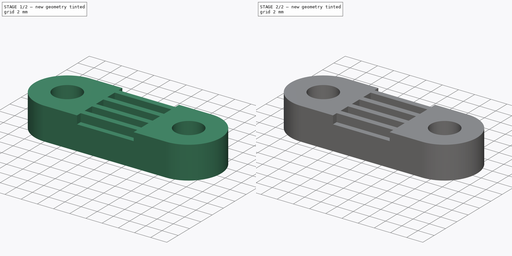
[diagram: build sequence overview — one tinted view per stage of 2, left to right]
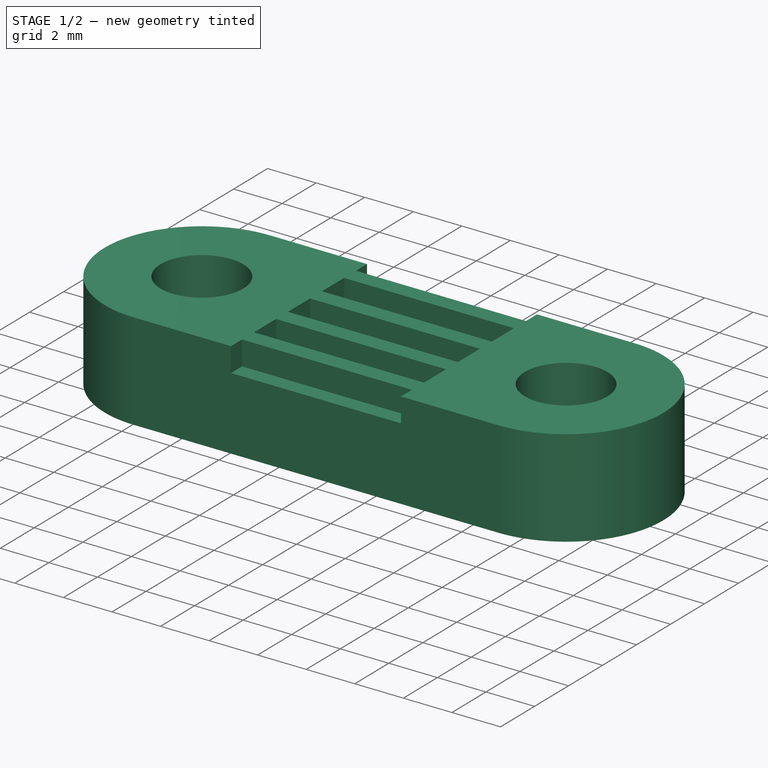
[diagram: stage 1 of 2 — iso view after this stage's code; geometry added in this stage tinted green]
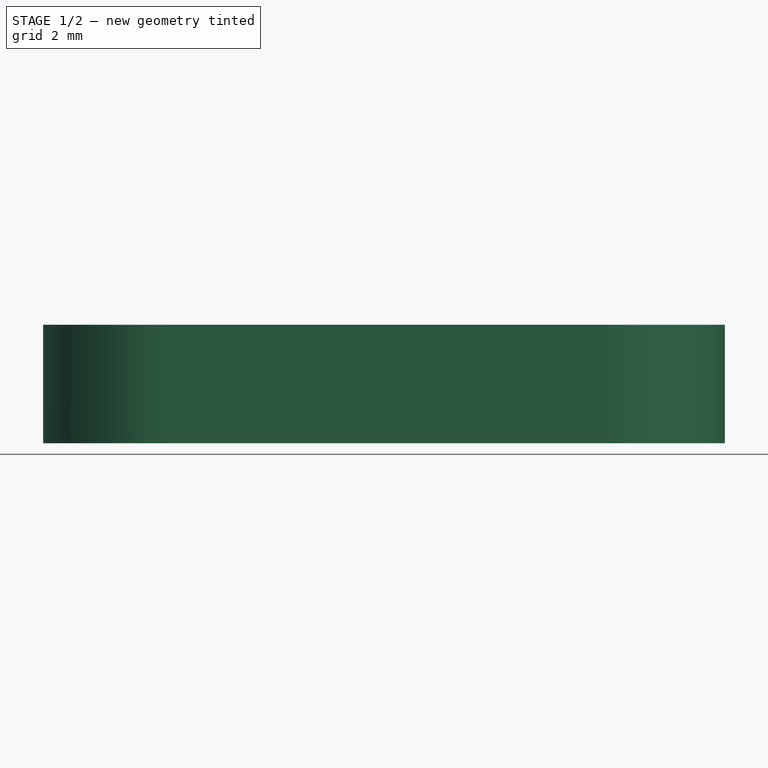
[diagram: stage 1 of 2 — front view after this stage's code; geometry added in this stage tinted green]
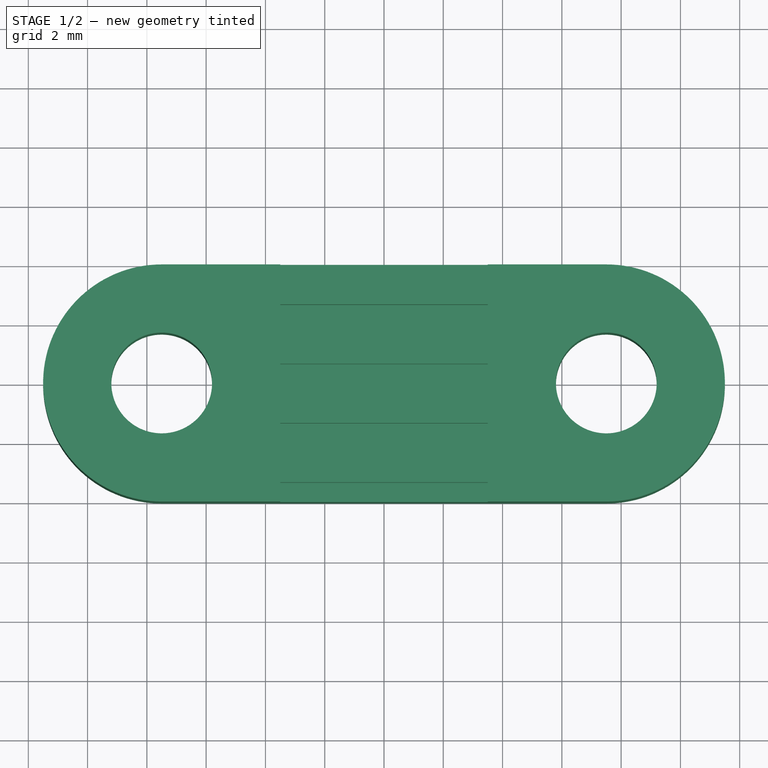
[diagram: stage 1 of 2 — top view after this stage's code; geometry added in this stage tinted green]
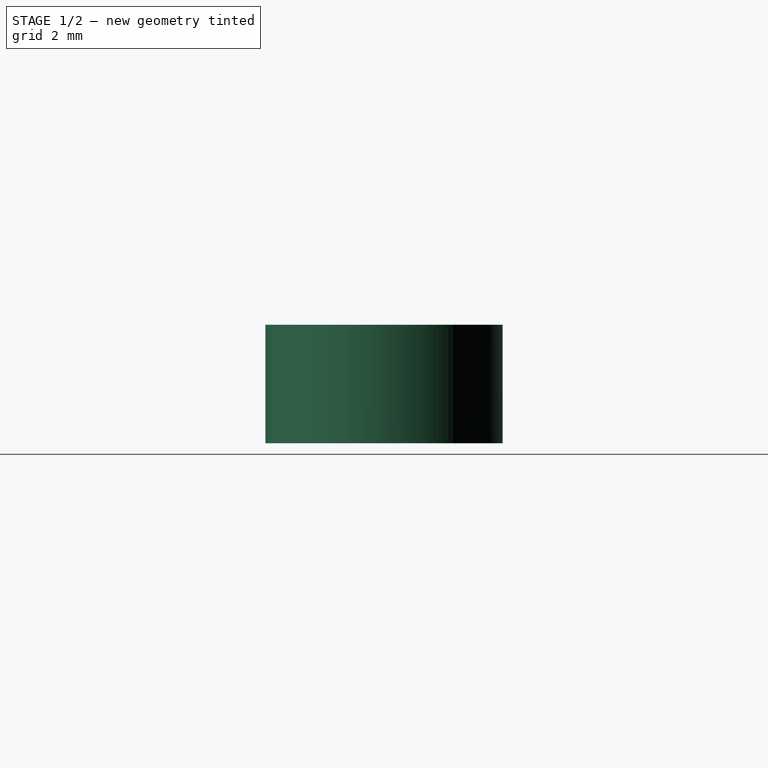
[diagram: stage 1 of 2 — right view after this stage's code; geometry added in this stage tinted green]
FCSTD DOCUMENT  (FreeCAD 0.15R4671 (Git))
Label: Belt Fixture - Top
License: All rights reserved
LicenseURL: http://de.wikipedia.org/wiki/Alle_Rechte_vorbehalten
objects: Sketcher::SketchObject×2, PartDesign::Pad×1, PartDesign::Pocket×1, PartDesign::Chamfer×1
note: 7 computed .brp shape members not serialized (recipe doc carries the construction recipe); baked Part::Feature solids carry a one-line shape summary decoded from their .brp

FEATURE [Sketcher::SketchObject] Sketch
  sketch-geometry (6):
    g0: ArcOfCircle CenterX=-7.5 CenterY=0 CenterZ=0 NormalX=0 NormalY=0 NormalZ=1 Radius=4 StartAngle=1.5708 EndAngle=4.71239
    g1: ArcOfCircle CenterX=7.5 CenterY=0 CenterZ=0 NormalX=0 NormalY=0 NormalZ=1 Radius=4 StartAngle=4.71239 EndAngle=7.85398
    g2: LineSegment StartX=-7.5 StartY=-4 StartZ=0 EndX=7.5 EndY=-4 EndZ=0
    g3: LineSegment StartX=-7.5 StartY=4 StartZ=0 EndX=7.5 EndY=4 EndZ=0
    g4: Circle CenterX=-7.5 CenterY=0 CenterZ=0 NormalX=0 NormalY=0 NormalZ=1 Radius=1.7
    g5: Circle CenterX=7.5 CenterY=0 CenterZ=0 NormalX=0 NormalY=0 NormalZ=1 Radius=1.7
  constraints (14):
    c: Tangent(g0,g3) = 1.5708
    c: Tangent(g0,g2) = -1.5708
    c: Tangent(g2,g1) = -1.5708
    c: Tangent(g3,g1) = 1.5708
    c: Horizontal(g2)
    c: Equal(g0,g1)
    c: Symmetric(g0,g1,g-2)
    c: PointOnObject(g1,g-1)
    c: Coincident(g4,g0)
    c: Coincident(g5,g1)
    c: Radius(g4) = 1.7
    c: Equal(g4,g5)
    c: DistanceY(g0,g0) = 8
    c: DistanceX(g3) = 15
FEATURE [PartDesign::Pad] Pad
  Length = 4
  Length2 = 100
  Sketch = -> Sketch
  Type = 0
FEATURE [Sketcher::SketchObject] Sketch001
  Placement = pos=(0,0,4) rot=(0,0,1;0rad)
  Support = -> Pad [Face8]
  sketch-geometry (20):
    g0: LineSegment StartX=-3.5 StartY=2.65 StartZ=0 EndX=3.5 EndY=2.65 EndZ=0
    g1: LineSegment StartX=3.5 StartY=2.65 StartZ=0 EndX=3.5 EndY=1.35 EndZ=0
    g2: LineSegment StartX=3.5 StartY=1.35 StartZ=0 EndX=-3.5 EndY=1.35 EndZ=0
    g3: LineSegment StartX=-3.5 StartY=1.35 StartZ=0 EndX=-3.5 EndY=2.65 EndZ=0
    g4: LineSegment StartX=-3.5 StartY=0.65 StartZ=0 EndX=3.5 EndY=0.65 EndZ=0
    g5: LineSegment StartX=3.5 StartY=0.65 StartZ=0 EndX=3.5 EndY=-0.65 EndZ=0
    g6: LineSegment StartX=3.5 StartY=-0.65 StartZ=0 EndX=-3.5 EndY=-0.65 EndZ=0
    g7: LineSegment StartX=-3.5 StartY=-0.65 StartZ=0 EndX=-3.5 EndY=0.65 EndZ=0
    g8: LineSegment StartX=-3.5 StartY=-1.35 StartZ=0 EndX=3.5 EndY=-1.35 EndZ=0
    g9: LineSegment StartX=3.5 StartY=-1.35 StartZ=0 EndX=3.5 EndY=-2.65 EndZ=0
    g10: LineSegment StartX=3.5 StartY=-2.65 StartZ=0 EndX=-3.5 EndY=-2.65 EndZ=0
    g11: LineSegment StartX=-3.5 StartY=-2.65 StartZ=0 EndX=-3.5 EndY=-1.35 EndZ=0
    g12: LineSegment StartX=-3.5 StartY=4.65 StartZ=0 EndX=3.5 EndY=4.65 EndZ=0
    g13: LineSegment StartX=3.5 StartY=4.65 StartZ=0 EndX=3.5 EndY=3.35 EndZ=0
    g14: LineSegment StartX=3.5 StartY=3.35 StartZ=0 EndX=-3.5 EndY=3.35 EndZ=0
    g15: LineSegment StartX=-3.5 StartY=3.35 StartZ=0 EndX=-3.5 EndY=4.65 EndZ=0
    g16: LineSegment StartX=-3.5 StartY=-4.65 StartZ=0 EndX=3.5 EndY=-4.65 EndZ=0
    g17: LineSegment StartX=3.5 StartY=-4.65 StartZ=0 EndX=3.5 EndY=-3.35 EndZ=0
    g18: LineSegment StartX=3.5 StartY=-3.35 StartZ=0 EndX=-3.5 EndY=-3.35 EndZ=0
    g19: LineSegment StartX=-3.5 StartY=-3.35 StartZ=0 EndX=-3.5 EndY=-4.65 EndZ=0
  constraints (60):
    c: Coincident(g0,g1)
    c: Coincident(g1,g2)
    c: Coincident(g2,g3)
    c: Coincident(g3,g0)
    c: Horizontal(g0)
    c: Horizontal(g2)
    c: Vertical(g1)
    c: Vertical(g3)
    c: Symmetric(g2,g1,g-2)
    c: DistanceY(g1) = -1.3
    c: DistanceX(g2) = -7
    c: Coincident(g4,g5)
    c: Coincident(g5,g6)
    c: Coincident(g6,g7)
    c: Coincident(g7,g4)
    c: Horizontal(g4)
    c: Horizontal(g6)
    c: Vertical(g5)
    c: Vertical(g7)
    c: Symmetric(g4,g4,g-2)
    c: Equal(g4,g2)
    c: Equal(g1,g5)
    c: DistanceY(g1,g4) = -0.7
    c: Coincident(g8,g9)
    c: Coincident(g9,g10)
    c: Coincident(g10,g11)
    c: Coincident(g11,g8)
    c: Horizontal(g8)
    c: Horizontal(g10)
    c: Vertical(g9)
    c: Vertical(g11)
    c: Symmetric(g5,g4,g-1)
    c: Equal(g5,g9)
    c: Symmetric(g8,g8,g-2)
    c: Equal(g6,g8)
    c: Coincident(g12,g13)
    c: Coincident(g13,g14)
    c: Coincident(g14,g15)
    c: Coincident(g15,g12)
    c: Horizontal(g12)
    c: Horizontal(g14)
    c: Vertical(g13)
    c: Vertical(g15)
    c: Coincident(g16,g17)
    c: Coincident(g17,g18)
    c: Coincident(g18,g19)
    c: Coincident(g19,g16)
    c: Horizontal(g16)
    c: Horizontal(g18)
    c: Vertical(g17)
    c: Vertical(g19)
    c: DistanceY(g8,g5) = 0.7
    c: DistanceY(g0,g13) = 0.7
    c: DistanceY(g9,g17) = -0.7
    c: Equal(g1,g13)
    c: Equal(g13,g17)
    c: Symmetric(g12,g12,g-2)
    c: Symmetric(g18,g17,g-2)
    c: Equal(g14,g0)
    c: Equal(g0,g18)
FEATURE [PartDesign::Pocket] Pocket
  Length = 1
  Sketch = -> Sketch001
  Type = 0
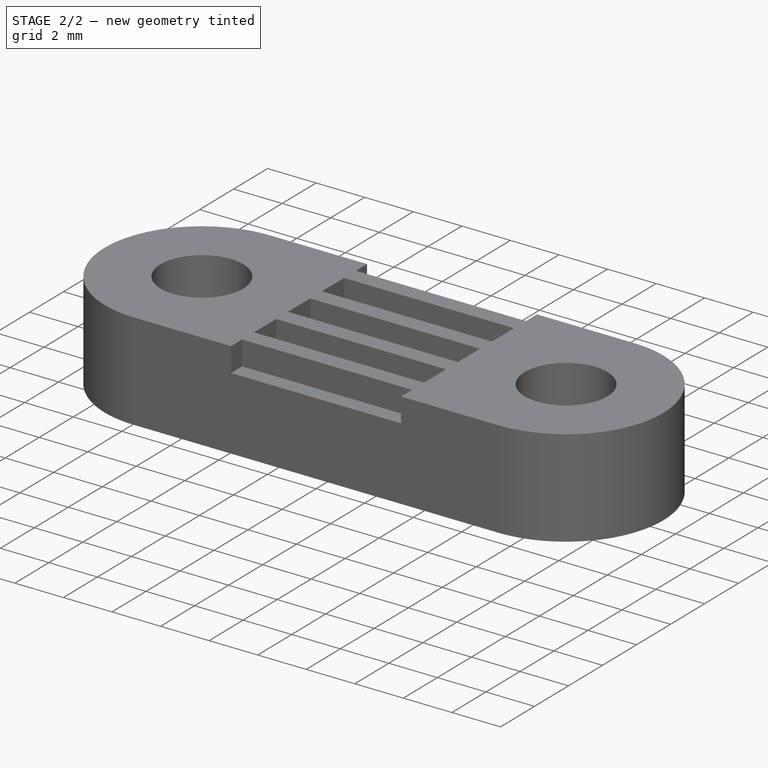
[diagram: stage 2 of 2 — iso view after this stage's code; geometry added in this stage tinted green]
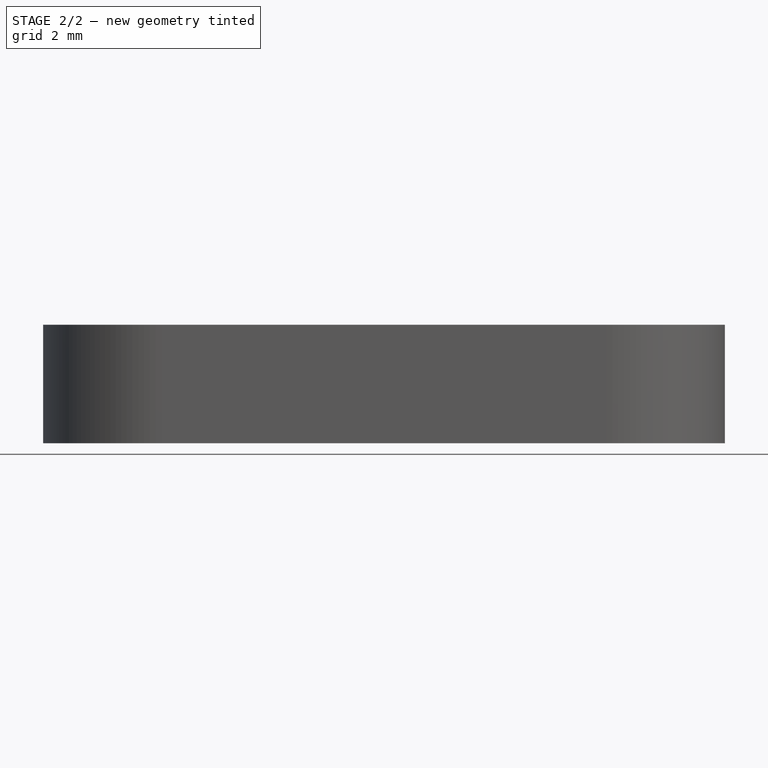
[diagram: stage 2 of 2 — front view after this stage's code; geometry added in this stage tinted green]
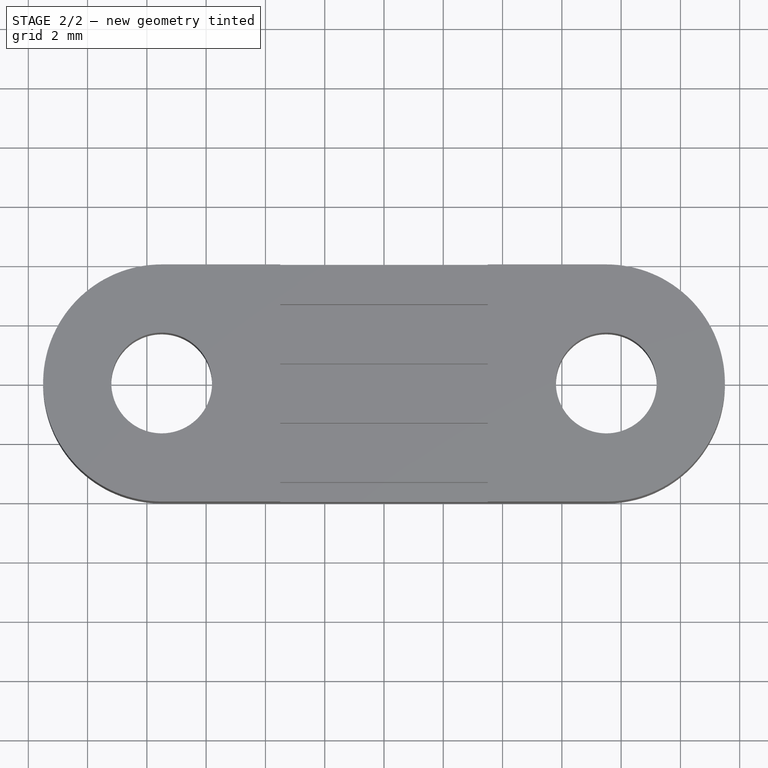
[diagram: stage 2 of 2 — top view after this stage's code; geometry added in this stage tinted green]
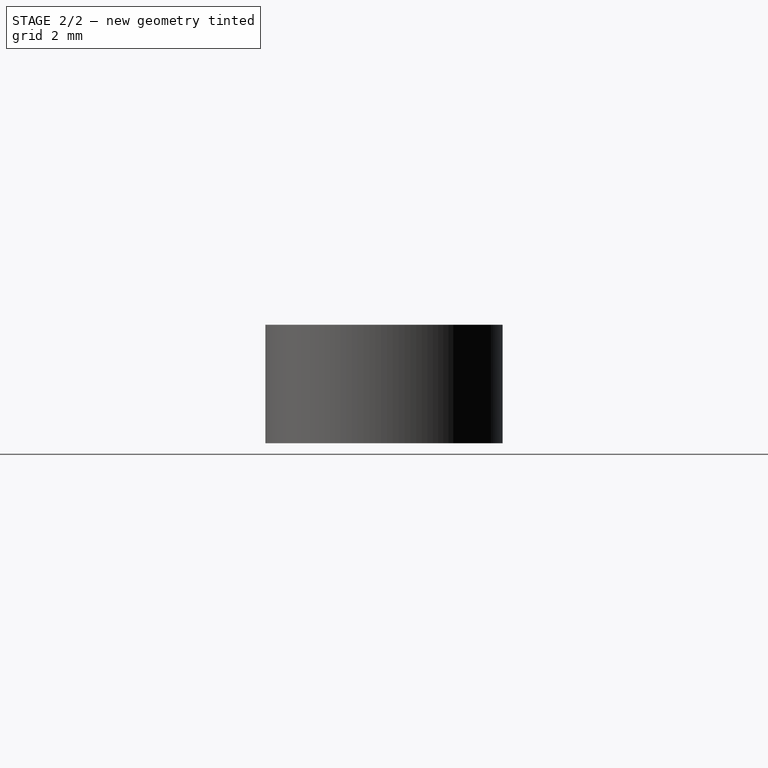
[diagram: stage 2 of 2 — right view after this stage's code; geometry added in this stage tinted green]
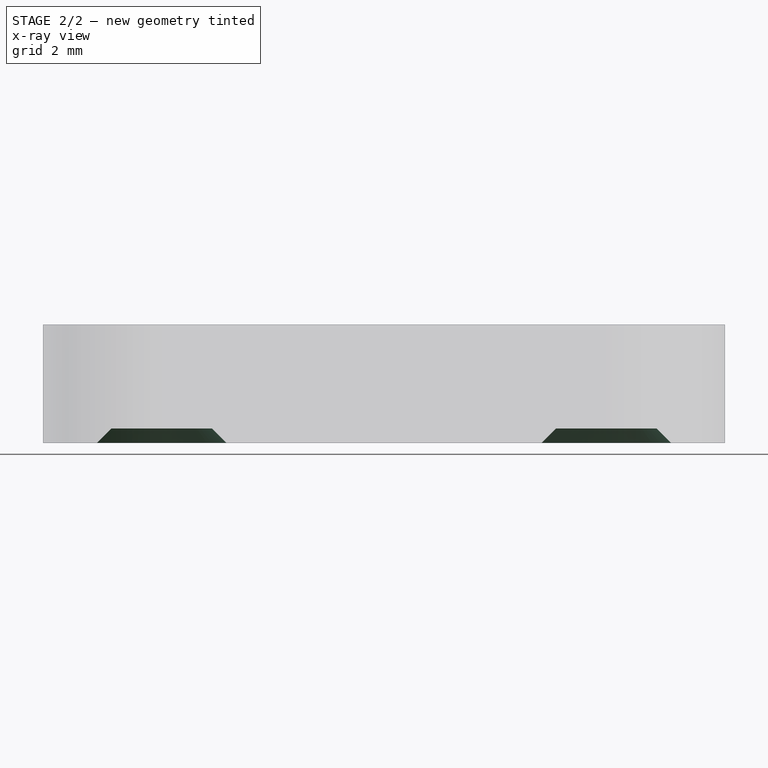
[diagram: stage 2 of 2 — x-ray composite at the front view; earlier geometry ghosted, this stage's added geometry solid]
FEATURE [PartDesign::Chamfer] Chamfer
  Base = -> Pocket [Edge21,Edge20]
  Size = 0.5
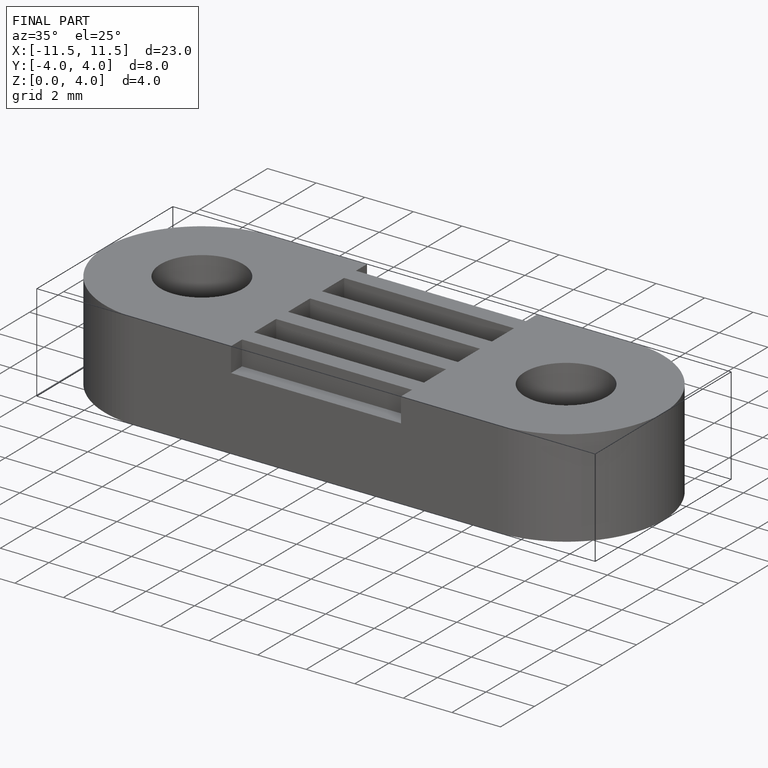
[diagram: finished part — iso view with bounding-box wireframe]
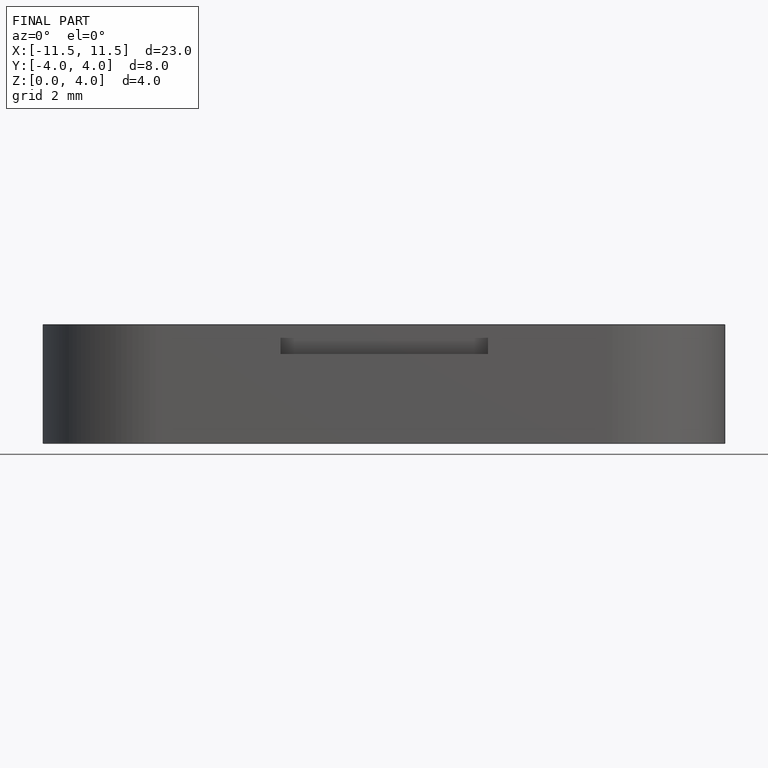
[diagram: finished part — front view with bounding-box wireframe]
